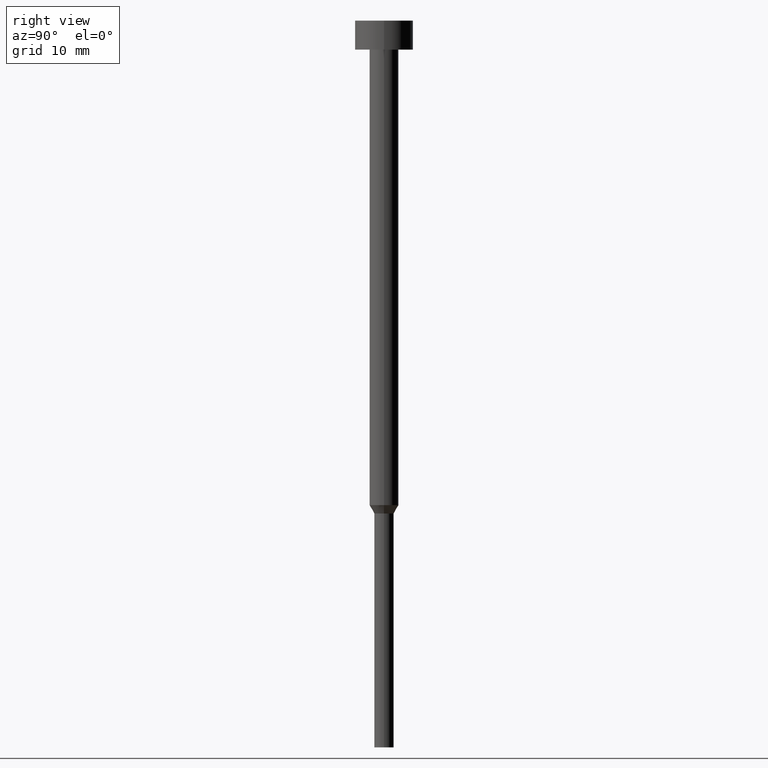
[diagram: clean part render]
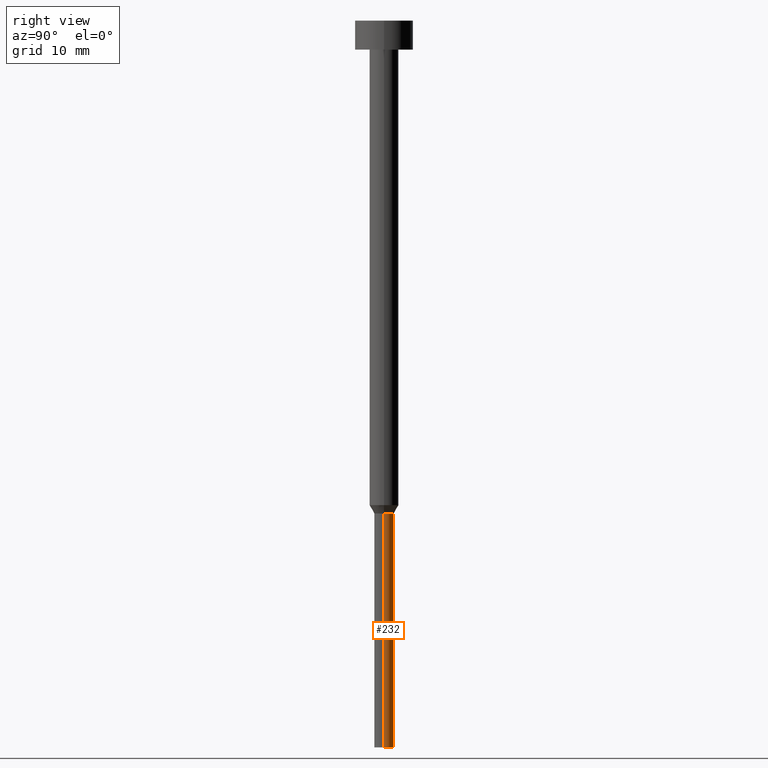
[diagram: same view with one face highlighted and labeled with its STEP entity id]
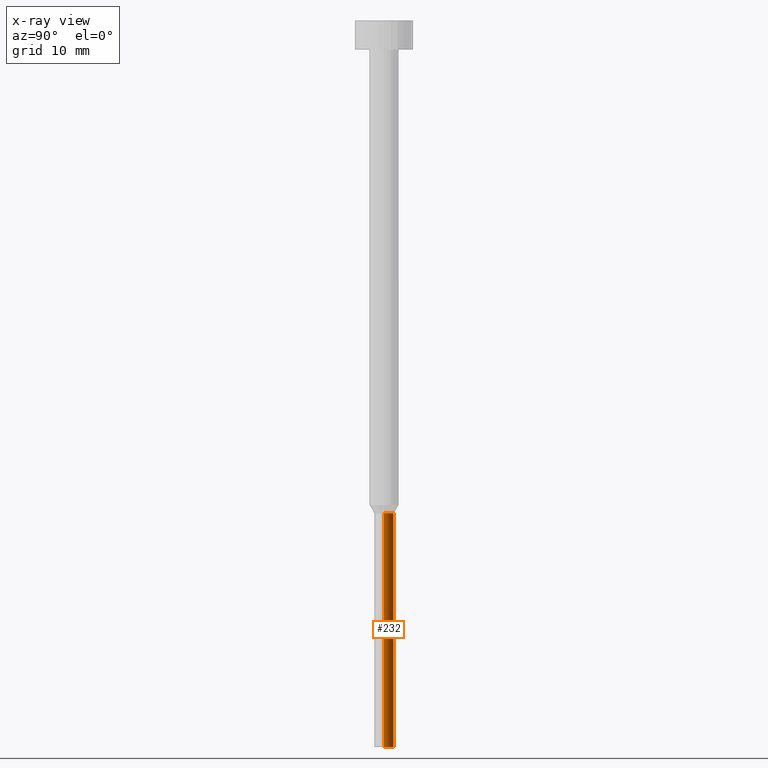
[diagram: x-ray of the same camera — body ghosted, the highlighted face saturated]
A machine part, right view. The second image highlights one B-rep face of the part: STEP entity #232.
The next image is the same camera in x-ray: the body ghosted, the highlighted face saturated — about 0% of this face is hidden behind the body in this view.
In plain terms, the highlighted cylindrical surface (edge-blend (fillet) strip) has radius 1 mm, axis along (-0, -0, 1).
Its self-contained STEP definition (entity closure, byte-faithful):
#15 = EDGE_CURVE ( 'NONE', #181, #32, #345, .T. ) ;
#28 = ORIENTED_EDGE ( 'NONE', *, *, #198, .T. ) ;
#32 = VERTEX_POINT ( 'NONE', #97 ) ;
#40 = DIRECTION ( 'NONE',  ( -0.000000000000000000, -0.000000000000000000, 1.000000000000000000 ) ) ;
#41 = LINE ( 'NONE', #315, #167 ) ;
#43 = EDGE_CURVE ( 'NONE', #98, #32, #245, .T. ) ;
#55 = AXIS2_PLACEMENT_3D ( 'NONE', #144, #223, #207 ) ;
#60 = DIRECTION ( 'NONE',  ( 1.000000000000000000, 0.000000000000000000, 0.000000000000000000 ) ) ;
#77 = CIRCLE ( 'NONE', #300, 1.000000000000000000 ) ;
#97 = CARTESIAN_POINT ( 'NONE',  ( -1.000000000000000000, 1.224646799147353207E-16, -50.86602540378444104 ) ) ;
#98 = VERTEX_POINT ( 'NONE', #263 ) ;
#102 = EDGE_LOOP ( 'NONE', ( #28, #243, #302, #200 ) ) ;
#125 = DIRECTION ( 'NONE',  ( 1.000000000000000000, 0.000000000000000000, 0.000000000000000000 ) ) ;
#144 = CARTESIAN_POINT ( 'NONE',  ( 0.000000000000000000, 0.000000000000000000, -50.86602540378444104 ) ) ;
#167 = VECTOR ( 'NONE', #350, 1000.000000000000000 ) ;
#181 = VERTEX_POINT ( 'NONE', #203 ) ;
#184 = CYLINDRICAL_SURFACE ( 'NONE', #219, 1.000000000000000000 ) ;
#198 = EDGE_CURVE ( 'NONE', #352, #98, #77, .T. ) ;
#200 = ORIENTED_EDGE ( 'NONE', *, *, #318, .F. ) ;
#203 = CARTESIAN_POINT ( 'NONE',  ( 1.000000000000000000, 0.000000000000000000, -50.86602540378444104 ) ) ;
#207 = DIRECTION ( 'NONE',  ( 1.000000000000000000, 0.000000000000000000, 0.000000000000000000 ) ) ;
#208 = CARTESIAN_POINT ( 'NONE',  ( -1.000000000000000000, 1.224646799147353207E-16, 0.000000000000000000 ) ) ;
#209 = FACE_OUTER_BOUND ( 'NONE', #102, .T. ) ;
#212 = DIRECTION ( 'NONE',  ( -0.000000000000000000, -0.000000000000000000, 1.000000000000000000 ) ) ;
#219 = AXIS2_PLACEMENT_3D ( 'NONE', #340, #212, #60 ) ;
#222 = VECTOR ( 'NONE', #40, 1000.000000000000000 ) ;
#223 = DIRECTION ( 'NONE',  ( -0.000000000000000000, -0.000000000000000000, 1.000000000000000000 ) ) ;
#232 = ADVANCED_FACE ( 'NONE', ( #209 ), #184, .T. ) ;
#243 = ORIENTED_EDGE ( 'NONE', *, *, #43, .T. ) ;
#245 = LINE ( 'NONE', #208, #222 ) ;
#263 = CARTESIAN_POINT ( 'NONE',  ( -1.000000000000000000, 1.224646799147353207E-16, -75.00000000000000000 ) ) ;
#273 = CARTESIAN_POINT ( 'NONE',  ( 0.000000000000000000, 0.000000000000000000, -75.00000000000000000 ) ) ;
#300 = AXIS2_PLACEMENT_3D ( 'NONE', #273, #321, #125 ) ;
#302 = ORIENTED_EDGE ( 'NONE', *, *, #15, .F. ) ;
#315 = CARTESIAN_POINT ( 'NONE',  ( 1.000000000000000000, 0.000000000000000000, 0.000000000000000000 ) ) ;
#318 = EDGE_CURVE ( 'NONE', #352, #181, #41, .T. ) ;
#321 = DIRECTION ( 'NONE',  ( -0.000000000000000000, -0.000000000000000000, 1.000000000000000000 ) ) ;
#340 = CARTESIAN_POINT ( 'NONE',  ( 0.000000000000000000, 0.000000000000000000, 0.000000000000000000 ) ) ;
#343 = CARTESIAN_POINT ( 'NONE',  ( 1.000000000000000000, 0.000000000000000000, -75.00000000000000000 ) ) ;
#345 = CIRCLE ( 'NONE', #55, 1.000000000000000000 ) ;
#350 = DIRECTION ( 'NONE',  ( -0.000000000000000000, -0.000000000000000000, 1.000000000000000000 ) ) ;
#352 = VERTEX_POINT ( 'NONE', #343 ) ;